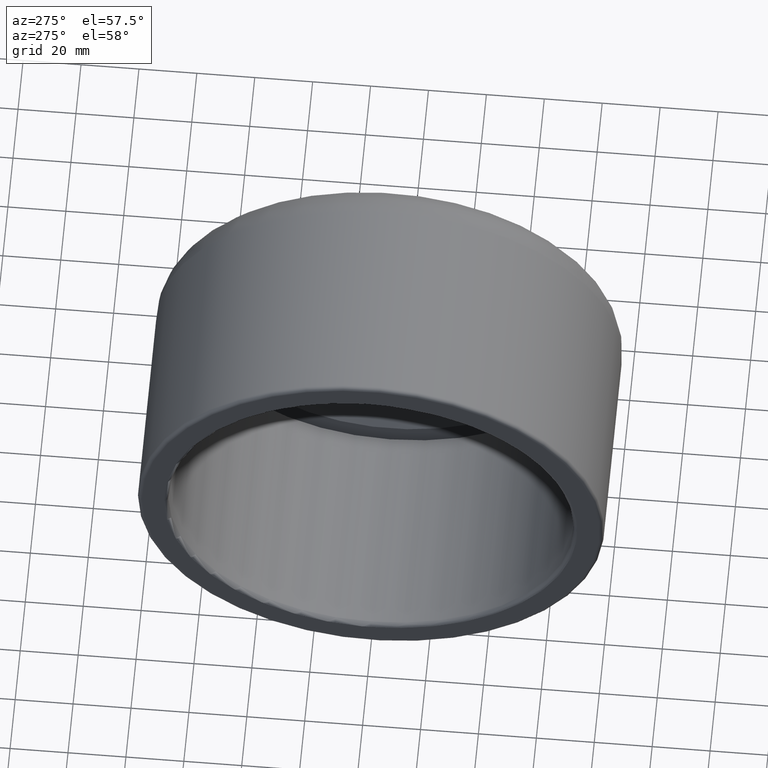
[diagram: clean part render]
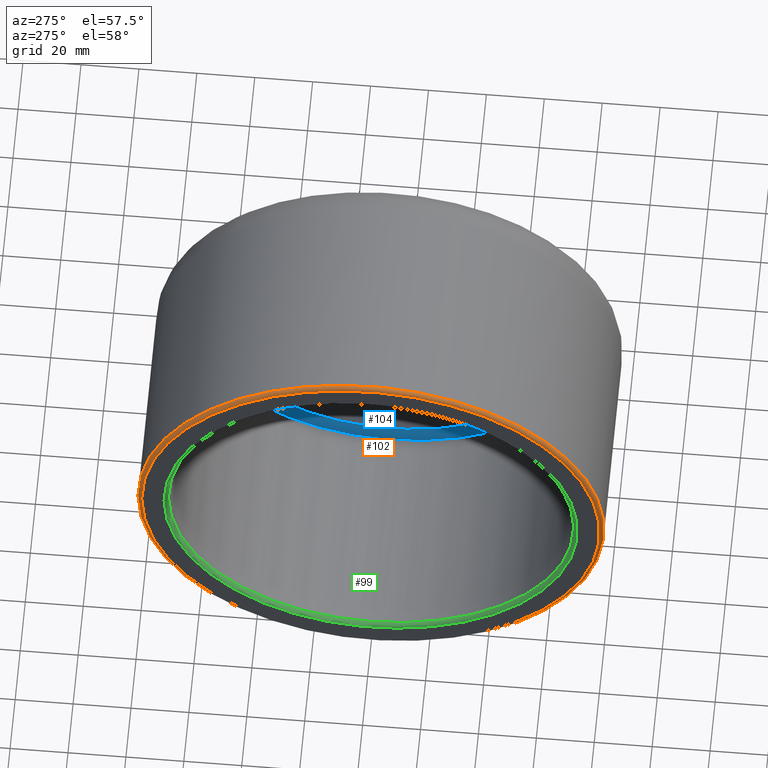
[diagram: same view with three faces highlighted in distinct colors, each labeled with its STEP entity id]
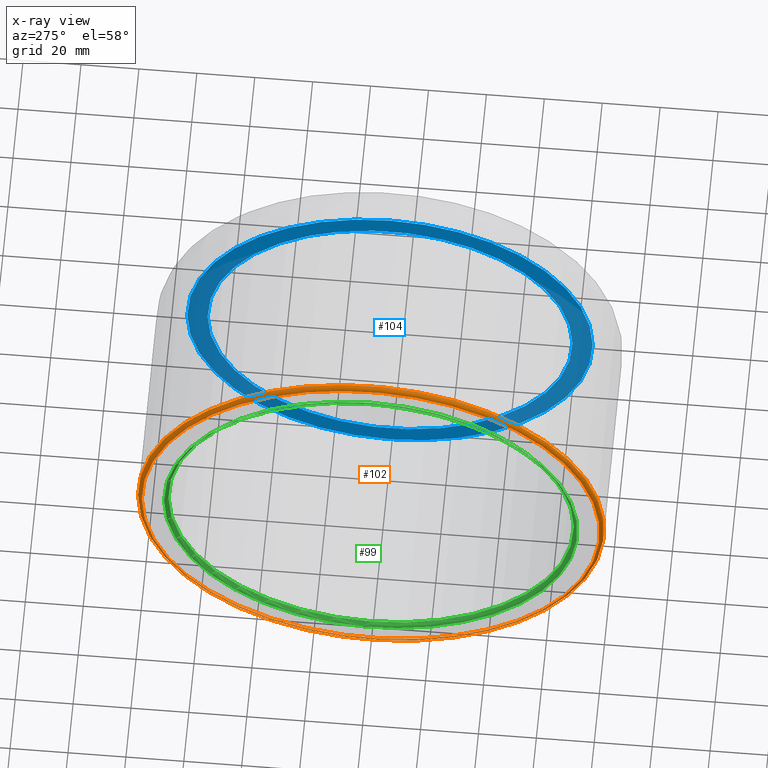
[diagram: x-ray of the same camera — body ghosted, the three highlighted faces saturated]
A machine part, auxiliary view with three faces highlighted in distinct colors.
The next image is the same camera in x-ray (body ghosted, the three faces saturated) — at least one of them is partly hidden behind the body in this view.
Their STEP definitions:

[orange] entity #102 — the highlighted toroidal blend (fillet) surface has major radius 79.1 mm and minor (blend) radius 1.4 mm.
#26=FACE_BOUND('',#49,.T.);
#34=FACE_OUTER_BOUND('',#48,.T.);
#48=EDGE_LOOP('',(#88));
#49=EDGE_LOOP('',(#89));
#55=CIRCLE('',#111,80.5);
#58=CIRCLE('',#117,79.1);
#63=VERTEX_POINT('',#167);
#66=VERTEX_POINT('',#176);
#71=EDGE_CURVE('',#63,#63,#55,.T.);
#74=EDGE_CURVE('',#66,#66,#58,.T.);
#88=ORIENTED_EDGE('',*,*,#74,.T.);
#89=ORIENTED_EDGE('',*,*,#71,.T.);
#95=TOROIDAL_SURFACE('',#120,79.1,1.4);
#102=ADVANCED_FACE('',(#34,#26),#95,.T.);
#111=AXIS2_PLACEMENT_3D('',#168,#134,#135);
#117=AXIS2_PLACEMENT_3D('',#177,#146,#147);
#120=AXIS2_PLACEMENT_3D('',#181,#152,#153);
#134=DIRECTION('center_axis',(-1.,-1.22659912418785E-16,0.));
#135=DIRECTION('ref_axis',(1.24124313312129E-16,-1.,1.83697019872103E-16));
#146=DIRECTION('center_axis',(1.,1.22659912418785E-16,0.));
#147=DIRECTION('ref_axis',(1.22659912418785E-16,-1.,1.83697019872103E-16));
#152=DIRECTION('center_axis',(1.,1.22659912418785E-16,0.));
#153=DIRECTION('ref_axis',(0.,0.,-1.));
#167=CARTESIAN_POINT('',(-106.6,80.5,-2.46460168328405E-14));
#168=CARTESIAN_POINT('Origin',(-106.6,-1.30755466638425E-14,0.));
#176=CARTESIAN_POINT('',(-108.,79.1,-4.84347809062778E-15));
#177=CARTESIAN_POINT('Origin',(-108.,-1.32472705412288E-14,0.));
#181=CARTESIAN_POINT('Origin',(-106.6,-1.30755466638425E-14,0.));

[blue] entity #104 — the highlighted planar face has unit normal (-1, -0, 0).
#16=PLANE('',#123);
#27=FACE_BOUND('',#52,.T.);
#36=FACE_OUTER_BOUND('',#51,.T.);
#51=EDGE_LOOP('',(#91));
#52=EDGE_LOOP('',(#92));
#59=CIRCLE('',#119,70.);
#60=CIRCLE('',#122,63.);
#67=VERTEX_POINT('',#179);
#68=VERTEX_POINT('',#183);
#75=EDGE_CURVE('',#67,#67,#59,.T.);
#76=EDGE_CURVE('',#68,#68,#60,.T.);
#91=ORIENTED_EDGE('',*,*,#75,.F.);
#92=ORIENTED_EDGE('',*,*,#76,.T.);
#104=ADVANCED_FACE('',(#36,#27),#16,.T.);
#119=AXIS2_PLACEMENT_3D('',#180,#150,#151);
#122=AXIS2_PLACEMENT_3D('',#184,#156,#157);
#123=AXIS2_PLACEMENT_3D('',#185,#158,#159);
#150=DIRECTION('center_axis',(1.,1.22659912418785E-16,0.));
#151=DIRECTION('ref_axis',(0.,0.,-1.));
#156=DIRECTION('center_axis',(1.,1.22659912418785E-16,0.));
#157=DIRECTION('ref_axis',(0.,0.,-1.));
#158=DIRECTION('center_axis',(-1.,-1.22659912418785E-16,0.));
#159=DIRECTION('ref_axis',(0.,0.,1.));
#179=CARTESIAN_POINT('',(-32.,70.,0.));
#180=CARTESIAN_POINT('Origin',(-32.,-3.92511719740112E-15,0.));
#183=CARTESIAN_POINT('',(-32.,63.,0.));
#184=CARTESIAN_POINT('Origin',(-32.,-3.92511719740112E-15,0.));
#185=CARTESIAN_POINT('Origin',(-32.,70.,0.));

[green] entity #99 — the highlighted toroidal blend (fillet) surface has major radius 71.4 mm and minor (blend) radius 1.4 mm.
#23=FACE_BOUND('',#43,.T.);
#31=FACE_OUTER_BOUND('',#42,.T.);
#42=EDGE_LOOP('',(#82));
#43=EDGE_LOOP('',(#83));
#56=CIRCLE('',#114,70.);
#57=CIRCLE('',#115,71.4);
#64=VERTEX_POINT('',#171);
#65=VERTEX_POINT('',#173);
#72=EDGE_CURVE('',#64,#64,#56,.T.);
#73=EDGE_CURVE('',#65,#65,#57,.T.);
#82=ORIENTED_EDGE('',*,*,#72,.T.);
#83=ORIENTED_EDGE('',*,*,#73,.T.);
#94=TOROIDAL_SURFACE('',#113,71.4,1.4);
#99=ADVANCED_FACE('',(#31,#23),#94,.T.);
#113=AXIS2_PLACEMENT_3D('',#170,#138,#139);
#114=AXIS2_PLACEMENT_3D('',#172,#140,#141);
#115=AXIS2_PLACEMENT_3D('',#174,#142,#143);
#138=DIRECTION('center_axis',(1.,1.22659912418785E-16,0.));
#139=DIRECTION('ref_axis',(0.,0.,-1.));
#140=DIRECTION('center_axis',(1.,1.22659912418785E-16,0.));
#141=DIRECTION('ref_axis',(1.22917549154928E-16,-1.,1.83697019872103E-16));
#142=DIRECTION('center_axis',(-1.,-1.22659912418785E-16,0.));
#143=DIRECTION('ref_axis',(1.22659912418785E-16,-1.,1.83697019872103E-16));
#170=CARTESIAN_POINT('Origin',(-106.6,-1.30755466638425E-14,0.));
#171=CARTESIAN_POINT('',(-106.6,70.,-4.28626379701574E-15));
#172=CARTESIAN_POINT('Origin',(-106.6,-1.30755466638425E-14,0.));
#173=CARTESIAN_POINT('',(-108.,71.4,-2.18599453647803E-14));
#174=CARTESIAN_POINT('Origin',(-108.,-1.32472705412288E-14,0.));